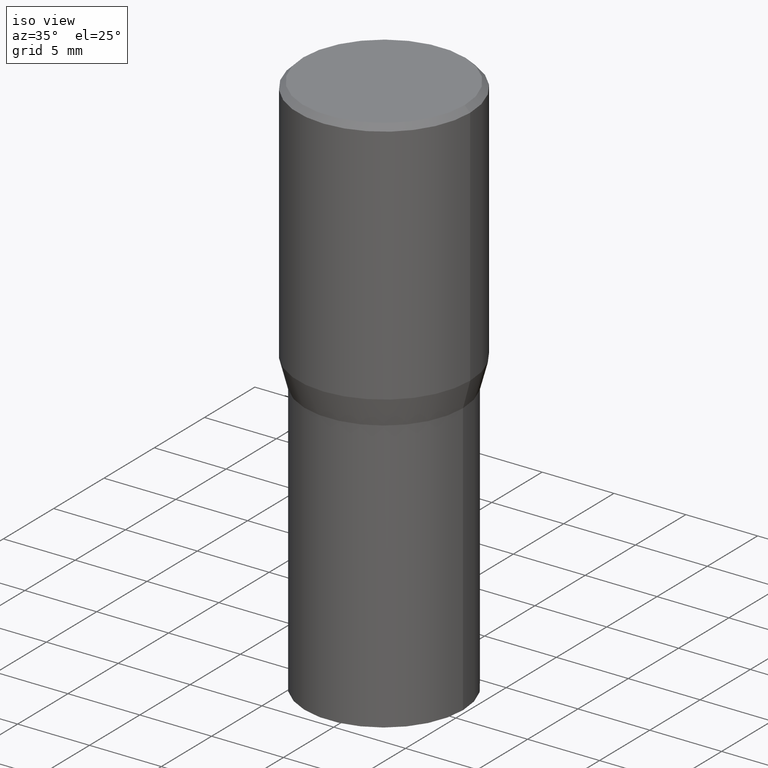
[diagram: clean part render]
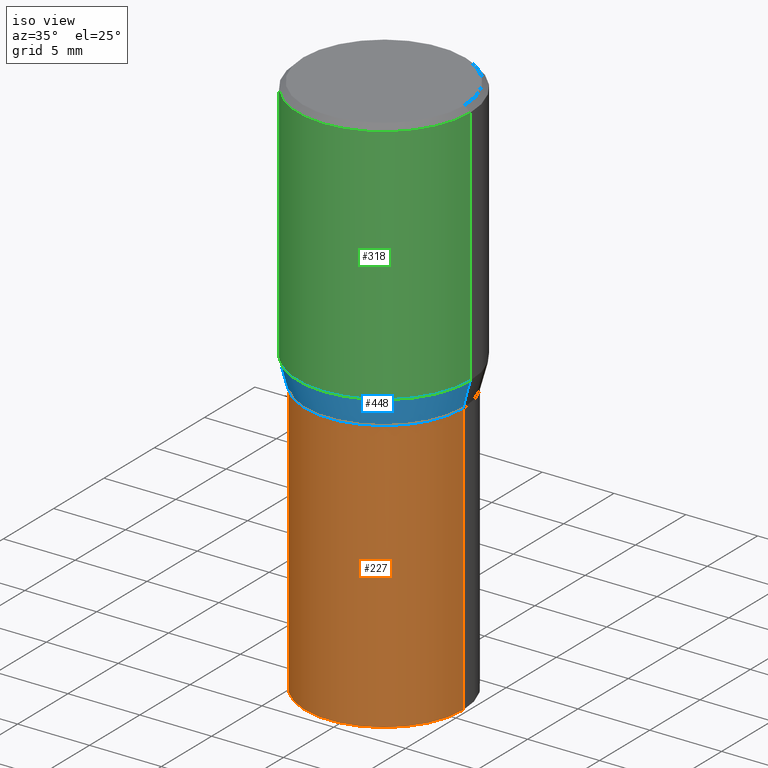
[diagram: same view with three faces highlighted in distinct colors, each labeled with its STEP entity id]
A machine part, iso view with three faces highlighted in distinct colors.
Their STEP definitions:

[orange] entity #227 — the highlighted cylindrical surface (partial cylindrical patch) has radius 5.5004 mm, axis along (-0, 0, 1).
#2 = ORIENTED_EDGE ( 'NONE', *, *, #228, .T. ) ;
#30 = EDGE_CURVE ( 'NONE', #411, #424, #223, .T. ) ;
#34 = DIRECTION ( 'NONE',  ( -2.445468806185136597E-29, 3.491481338843145583E-15, 1.000000000000000000 ) ) ;
#35 = AXIS2_PLACEMENT_3D ( 'NONE', #293, #123, #229 ) ;
#70 = CYLINDRICAL_SURFACE ( 'NONE', #420, 0.2165500000000000203 ) ;
#98 = CIRCLE ( 'NONE', #35, 0.2165500000000000203 ) ;
#106 = LINE ( 'NONE', #462, #114 ) ;
#114 = VECTOR ( 'NONE', #432, 39.37007874015748143 ) ;
#118 = AXIS2_PLACEMENT_3D ( 'NONE', #445, #34, #388 ) ;
#123 = DIRECTION ( 'NONE',  ( -2.445468806185136597E-29, 3.491481338843145583E-15, 1.000000000000000000 ) ) ;
#152 = CARTESIAN_POINT ( 'NONE',  ( -0.2165500000000000203, 1.538680294288497096E-15, -1.065195393794699923E-29 ) ) ;
#204 = ORIENTED_EDGE ( 'NONE', *, *, #30, .T. ) ;
#220 = DIRECTION ( 'NONE',  ( -2.445468806185136877E-29, 3.491481338843145188E-15, 1.000000000000000000 ) ) ;
#223 = CIRCLE ( 'NONE', #118, 0.2165500000000000203 ) ;
#227 = ADVANCED_FACE ( 'NONE', ( #415 ), #70, .T. ) ;
#228 = EDGE_CURVE ( 'NONE', #424, #308, #106, .T. ) ;
#229 = DIRECTION ( 'NONE',  ( 1.000000000000000000, -6.982962677686266711E-15, 0.000000000000000000 ) ) ;
#264 = CARTESIAN_POINT ( 'NONE',  ( 0.000000000000000000, 0.000000000000000000, 0.000000000000000000 ) ) ;
#270 = VERTEX_POINT ( 'NONE', #324 ) ;
#284 = EDGE_CURVE ( 'NONE', #270, #308, #98, .T. ) ;
#287 = VECTOR ( 'NONE', #220, 39.37007874015748143 ) ;
#293 = CARTESIAN_POINT ( 'NONE',  ( 1.838992542251222813E-29, -2.625593966810045497E-15, -0.7520000000000001128 ) ) ;
#308 = VERTEX_POINT ( 'NONE', #344 ) ;
#316 = ORIENTED_EDGE ( 'NONE', *, *, #421, .F. ) ;
#324 = CARTESIAN_POINT ( 'NONE',  ( -0.2165500000000000203, -2.392727693248884740E-15, -0.7520000000000001128 ) ) ;
#325 = DIRECTION ( 'NONE',  ( 1.000000000000000000, -6.982962677686266711E-15, 4.876176775795935793E-29 ) ) ;
#331 = DIRECTION ( 'NONE',  ( -2.445468806185136597E-29, 3.491481338843145583E-15, 1.000000000000000000 ) ) ;
#337 = CARTESIAN_POINT ( 'NONE',  ( -0.2165500000000000203, -2.392727693248884740E-15, -1.500000000000000222 ) ) ;
#344 = CARTESIAN_POINT ( 'NONE',  ( 0.2165500000000000203, -4.137754534663007109E-15, -0.7520000000000001128 ) ) ;
#379 = LINE ( 'NONE', #152, #287 ) ;
#388 = DIRECTION ( 'NONE',  ( 1.000000000000000000, -6.982962677686264344E-15, 0.000000000000000000 ) ) ;
#411 = VERTEX_POINT ( 'NONE', #337 ) ;
#415 = FACE_OUTER_BOUND ( 'NONE', #431, .T. ) ;
#419 = ORIENTED_EDGE ( 'NONE', *, *, #284, .F. ) ;
#420 = AXIS2_PLACEMENT_3D ( 'NONE', #264, #331, #325 ) ;
#421 = EDGE_CURVE ( 'NONE', #411, #270, #379, .T. ) ;
#424 = VERTEX_POINT ( 'NONE', #428 ) ;
#428 = CARTESIAN_POINT ( 'NONE',  ( 0.2165500000000000203, -6.749382576117678999E-15, -1.500000000000000222 ) ) ;
#431 = EDGE_LOOP ( 'NONE', ( #316, #204, #2, #419 ) ) ;
#432 = DIRECTION ( 'NONE',  ( -2.445468806185136877E-29, 3.491481338843145188E-15, 1.000000000000000000 ) ) ;
#445 = CARTESIAN_POINT ( 'NONE',  ( 3.668203209277704895E-29, -5.237222008264718177E-15, -1.500000000000000222 ) ) ;
#462 = CARTESIAN_POINT ( 'NONE',  ( 0.2165500000000000203, -1.512160567852961217E-15, 1.055936080798610036E-29 ) ) ;

[blue] entity #448 — the highlighted conical surface has half-angle 15 deg.
#4 = CARTESIAN_POINT ( 'NONE',  ( 0.2165500000000000203, -4.137754534663007109E-15, -0.7520000000000001128 ) ) ;
#13 = DIRECTION ( 'NONE',  ( -2.445468806185136597E-29, 3.491481338843145583E-15, 1.000000000000000000 ) ) ;
#20 = CARTESIAN_POINT ( 'NONE',  ( -0.2165500000000000203, -1.086913672521548598E-15, -0.7520000000000001128 ) ) ;
#27 = EDGE_CURVE ( 'NONE', #310, #133, #130, .T. ) ;
#69 = CIRCLE ( 'NONE', #362, 0.2165500000000000203 ) ;
#81 = CARTESIAN_POINT ( 'NONE',  ( 1.659654580432621677E-29, -2.369546886817807077E-15, -0.6786652016312719748 ) ) ;
#83 = EDGE_CURVE ( 'NONE', #387, #310, #69, .T. ) ;
#85 = CARTESIAN_POINT ( 'NONE',  ( 0.2165500000000000203, -4.137754534663007109E-15, -0.7520000000000001128 ) ) ;
#108 = VECTOR ( 'NONE', #260, 39.37007874015748143 ) ;
#130 = LINE ( 'NONE', #4, #323 ) ;
#133 = VERTEX_POINT ( 'NONE', #275 ) ;
#147 = DIRECTION ( 'NONE',  ( -2.445468806185136597E-29, 3.491481338843145583E-15, 1.000000000000000000 ) ) ;
#148 = EDGE_CURVE ( 'NONE', #391, #133, #349, .T. ) ;
#156 = DIRECTION ( 'NONE',  ( 1.000000000000000000, -6.982962677686266711E-15, 0.000000000000000000 ) ) ;
#165 = CONICAL_SURFACE ( 'NONE', #304, 0.2165500000000000203, 0.2617993877991505736 ) ;
#175 = ORIENTED_EDGE ( 'NONE', *, *, #83, .T. ) ;
#207 = DIRECTION ( 'NONE',  ( 0.2588190451025218497, 1.565188264969618221E-15, 0.9659258262890679791 ) ) ;
#221 = ORIENTED_EDGE ( 'NONE', *, *, #148, .F. ) ;
#224 = LINE ( 'NONE', #20, #108 ) ;
#260 = DIRECTION ( 'NONE',  ( -0.2588190451025218497, 5.211531920934553408E-15, 0.9659258262890679791 ) ) ;
#266 = CARTESIAN_POINT ( 'NONE',  ( -0.2361999999999999933, -6.912449449524502887E-16, -0.6786652016312719748 ) ) ;
#275 = CARTESIAN_POINT ( 'NONE',  ( 0.2361999999999999933, -4.018922671287303208E-15, -0.6786652016312719748 ) ) ;
#278 = ORIENTED_EDGE ( 'NONE', *, *, #27, .T. ) ;
#281 = DIRECTION ( 'NONE',  ( 1.000000000000000000, -6.982962677686266711E-15, 0.000000000000000000 ) ) ;
#298 = DIRECTION ( 'NONE',  ( 1.000000000000000000, -6.982962677686266711E-15, 0.000000000000000000 ) ) ;
#304 = AXIS2_PLACEMENT_3D ( 'NONE', #373, #13, #156 ) ;
#310 = VERTEX_POINT ( 'NONE', #85 ) ;
#312 = CARTESIAN_POINT ( 'NONE',  ( 1.838992542251222813E-29, -2.625593966810045497E-15, -0.7520000000000001128 ) ) ;
#319 = ORIENTED_EDGE ( 'NONE', *, *, #367, .F. ) ;
#323 = VECTOR ( 'NONE', #207, 39.37007874015748143 ) ;
#349 = CIRCLE ( 'NONE', #408, 0.2361999999999999933 ) ;
#362 = AXIS2_PLACEMENT_3D ( 'NONE', #312, #147, #281 ) ;
#367 = EDGE_CURVE ( 'NONE', #387, #391, #224, .T. ) ;
#372 = DIRECTION ( 'NONE',  ( -2.445468806185136597E-29, 3.491481338843145583E-15, 1.000000000000000000 ) ) ;
#373 = CARTESIAN_POINT ( 'NONE',  ( 1.838992542251222813E-29, -2.625593966810045497E-15, -0.7520000000000001128 ) ) ;
#387 = VERTEX_POINT ( 'NONE', #437 ) ;
#391 = VERTEX_POINT ( 'NONE', #266 ) ;
#395 = FACE_OUTER_BOUND ( 'NONE', #457, .T. ) ;
#408 = AXIS2_PLACEMENT_3D ( 'NONE', #81, #372, #298 ) ;
#437 = CARTESIAN_POINT ( 'NONE',  ( -0.2165500000000000203, -8.890793087369993447E-16, -0.7520000000000001128 ) ) ;
#448 = ADVANCED_FACE ( 'NONE', ( #395 ), #165, .T. ) ;
#457 = EDGE_LOOP ( 'NONE', ( #319, #175, #278, #221 ) ) ;

[green] entity #318 — the highlighted cylindrical surface (partial cylindrical patch) has radius 5.9995 mm, axis along (-0, 0, 1).
#37 = CARTESIAN_POINT ( 'NONE',  ( -0.2361999999999999933, 1.678301941865356591E-15, -1.161852468318208757E-29 ) ) ;
#39 = ORIENTED_EDGE ( 'NONE', *, *, #148, .T. ) ;
#41 = VECTOR ( 'NONE', #385, 39.37007874015748143 ) ;
#44 = CIRCLE ( 'NONE', #74, 0.2361999999999999933 ) ;
#49 = EDGE_CURVE ( 'NONE', #391, #386, #429, .T. ) ;
#67 = ORIENTED_EDGE ( 'NONE', *, *, #170, .T. ) ;
#74 = AXIS2_PLACEMENT_3D ( 'NONE', #375, #378, #262 ) ;
#81 = CARTESIAN_POINT ( 'NONE',  ( 1.659654580432621677E-29, -2.369546886817807077E-15, -0.6786652016312719748 ) ) ;
#84 = DIRECTION ( 'NONE',  ( -2.445468806185136597E-29, 3.491481338843145583E-15, 1.000000000000000000 ) ) ;
#89 = CARTESIAN_POINT ( 'NONE',  ( 0.000000000000000000, 0.000000000000000000, 0.000000000000000000 ) ) ;
#90 = VECTOR ( 'NONE', #239, 39.37007874015748143 ) ;
#133 = VERTEX_POINT ( 'NONE', #275 ) ;
#135 = CARTESIAN_POINT ( 'NONE',  ( 0.2361999999999999933, -1.649375784469496131E-15, 1.151752954443000088E-29 ) ) ;
#148 = EDGE_CURVE ( 'NONE', #391, #133, #349, .T. ) ;
#170 = EDGE_CURVE ( 'NONE', #133, #246, #192, .T. ) ;
#192 = LINE ( 'NONE', #135, #90 ) ;
#216 = ORIENTED_EDGE ( 'NONE', *, *, #49, .F. ) ;
#239 = DIRECTION ( 'NONE',  ( -2.445468806185136877E-29, 3.491481338843145188E-15, 1.000000000000000000 ) ) ;
#244 = EDGE_LOOP ( 'NONE', ( #216, #39, #67, #283 ) ) ;
#246 = VERTEX_POINT ( 'NONE', #450 ) ;
#262 = DIRECTION ( 'NONE',  ( 1.000000000000000000, -6.982962677686266711E-15, 0.000000000000000000 ) ) ;
#263 = CARTESIAN_POINT ( 'NONE',  ( -0.2361999999999999933, 4.673423884151294145E-16, -0.01499999999999999944 ) ) ;
#266 = CARTESIAN_POINT ( 'NONE',  ( -0.2361999999999999933, -6.912449449524502887E-16, -0.6786652016312719748 ) ) ;
#272 = AXIS2_PLACEMENT_3D ( 'NONE', #89, #84, #339 ) ;
#275 = CARTESIAN_POINT ( 'NONE',  ( 0.2361999999999999933, -4.018922671287303208E-15, -0.6786652016312719748 ) ) ;
#283 = ORIENTED_EDGE ( 'NONE', *, *, #342, .F. ) ;
#298 = DIRECTION ( 'NONE',  ( 1.000000000000000000, -6.982962677686266711E-15, 0.000000000000000000 ) ) ;
#318 = ADVANCED_FACE ( 'NONE', ( #435 ), #433, .T. ) ;
#339 = DIRECTION ( 'NONE',  ( 1.000000000000000000, -6.982962677686266711E-15, 4.876176775795936353E-29 ) ) ;
#342 = EDGE_CURVE ( 'NONE', #386, #246, #44, .T. ) ;
#349 = CIRCLE ( 'NONE', #408, 0.2361999999999999933 ) ;
#372 = DIRECTION ( 'NONE',  ( -2.445468806185136597E-29, 3.491481338843145583E-15, 1.000000000000000000 ) ) ;
#375 = CARTESIAN_POINT ( 'NONE',  ( 3.668203209277705088E-31, -5.237222008264718399E-17, -0.01499999999999999944 ) ) ;
#378 = DIRECTION ( 'NONE',  ( -2.445468806185136597E-29, 3.491481338843145583E-15, 1.000000000000000000 ) ) ;
#385 = DIRECTION ( 'NONE',  ( -2.445468806185136877E-29, 3.491481338843145188E-15, 1.000000000000000000 ) ) ;
#386 = VERTEX_POINT ( 'NONE', #263 ) ;
#391 = VERTEX_POINT ( 'NONE', #266 ) ;
#408 = AXIS2_PLACEMENT_3D ( 'NONE', #81, #372, #298 ) ;
#429 = LINE ( 'NONE', #37, #41 ) ;
#433 = CYLINDRICAL_SURFACE ( 'NONE', #272, 0.2361999999999999933 ) ;
#435 = FACE_OUTER_BOUND ( 'NONE', #244, .T. ) ;
#450 = CARTESIAN_POINT ( 'NONE',  ( 0.2361999999999999933, -1.701748004552143407E-15, -0.01499999999999999944 ) ) ;